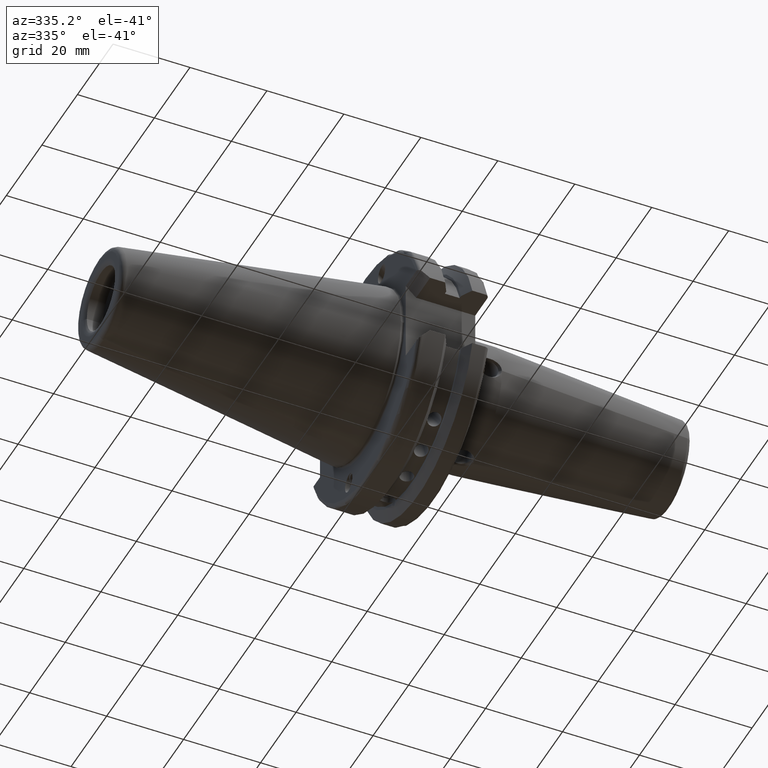
[diagram: clean part render]
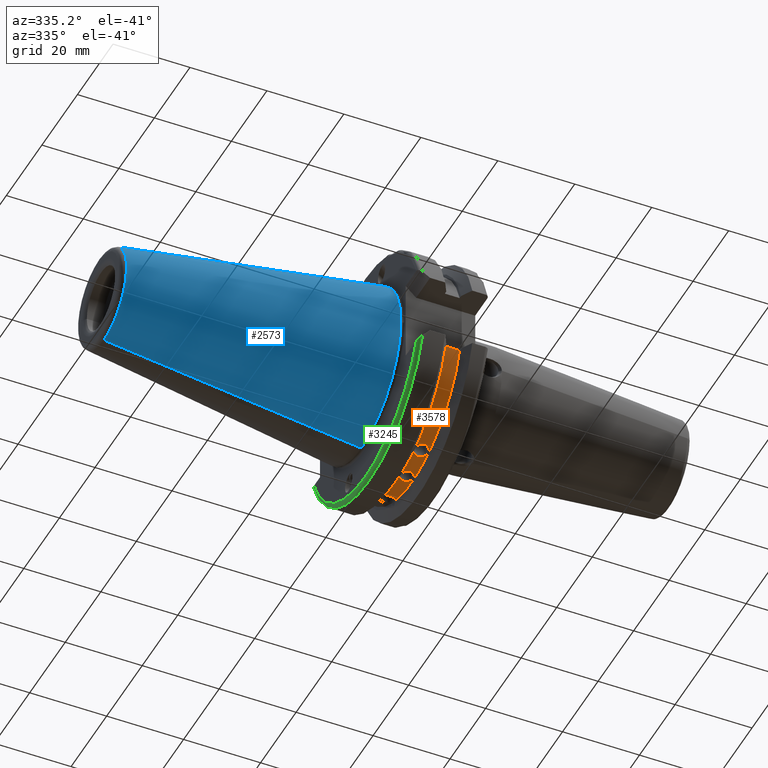
[diagram: same view with three faces highlighted in distinct colors, each labeled with its STEP entity id]
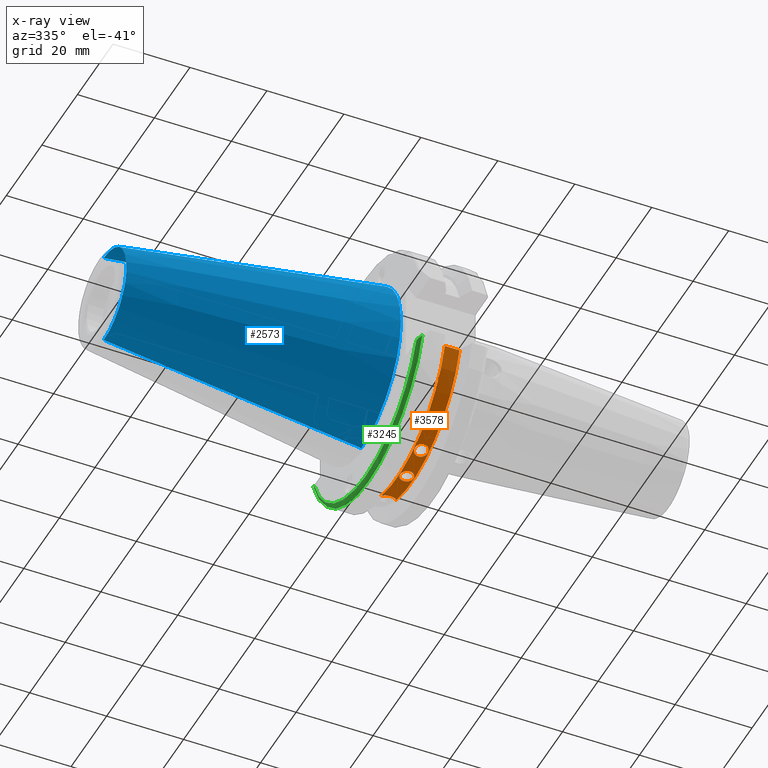
[diagram: x-ray of the same camera — body ghosted, the three highlighted faces saturated]
A machine part, auxiliary view with three faces highlighted in distinct colors.
The next image is the same camera in x-ray (body ghosted, the three faces saturated) — at least one of them is partly hidden behind the body in this view.
Their STEP definitions:

[orange] entity #3578 — the highlighted cylindrical surface (partial cylindrical patch) has radius 28.194 mm, axis along (1, 0, 0).
#932=CARTESIAN_POINT('',(3.63E-1,3.467616214502E-1,-1.054446005203E0));
#933=CARTESIAN_POINT('',(3.652420429702E-1,3.421682119876E-1,
-1.055956578628E0));
#934=CARTESIAN_POINT('',(3.707045512659E-1,3.331805302706E-1,
-1.058846919325E0));
#935=CARTESIAN_POINT('',(3.830062237096E-1,3.201251157136E-1,
-1.062861149201E0));
#936=CARTESIAN_POINT('',(3.990490784815E-1,3.094131909959E-1,
-1.066016879720E0));
#937=CARTESIAN_POINT('',(4.181273427184E-1,3.024342533407E-1,
-1.068007674065E0));
#938=CARTESIAN_POINT('',(4.312216038652E-1,3.008966716070E-1,
-1.068438670685E0));
#939=CARTESIAN_POINT('',(4.38E-1,3.008966716070E-1,-1.068438670685E0));
#941=CARTESIAN_POINT('',(3.63E-1,0.E0,0.E0));
#942=DIRECTION('',(-1.E0,0.E0,0.E0));
#943=DIRECTION('',(0.E0,3.123978571623E-1,-9.499513560390E-1));
#944=AXIS2_PLACEMENT_3D('',#941,#942,#943);
#946=DIRECTION('',(1.E0,0.E0,0.E0));
#947=VECTOR('',#946,1.51E-1);
#948=CARTESIAN_POINT('',(3.63E-1,-1.062269269065E0,-3.22E-1));
#949=LINE('',#948,#947);
#950=CARTESIAN_POINT('',(5.14E-1,0.E0,0.E0));
#951=DIRECTION('',(1.E0,0.E0,0.E0));
#952=DIRECTION('',(0.E0,-9.569993415E-1,-2.900900900901E-1));
#953=AXIS2_PLACEMENT_3D('',#950,#951,#952);
#955=CARTESIAN_POINT('',(4.38E-1,3.008966716070E-1,-1.068438670685E0));
#956=CARTESIAN_POINT('',(4.451480456105E-1,3.008966716070E-1,
-1.068438670685E0));
#957=CARTESIAN_POINT('',(4.588578755663E-1,3.026052277595E-1,
-1.067959900312E0));
#958=CARTESIAN_POINT('',(4.785243857078E-1,3.101729484678E-1,
-1.065798260325E0));
#959=CARTESIAN_POINT('',(4.947155534546E-1,3.215783670997E-1,
-1.062425069525E0));
#960=CARTESIAN_POINT('',(5.067422558969E-1,3.351260794586E-1,
-1.058234525019E0));
#961=CARTESIAN_POINT('',(5.119144113810E-1,3.442671938992E-1,
-1.055274292374E0));
#962=CARTESIAN_POINT('',(5.14E-1,3.488919359391E-1,-1.053743050766E0));
#1028=CARTESIAN_POINT('',(4.38E-1,-7.217507112754E-1,-8.433124633097E-1));
#1029=CARTESIAN_POINT('',(4.312761269445E-1,-7.217507112754E-1,
-8.433124633097E-1));
#1030=CARTESIAN_POINT('',(4.184239813639E-1,-7.203202020981E-1,
-8.445399283354E-1));
#1031=CARTESIAN_POINT('',(4.002364574980E-1,-7.140204130629E-1,
-8.498896777967E-1));
#1032=CARTESIAN_POINT('',(3.852243874663E-1,-7.039967206173E-1,
-8.582329882160E-1));
#1033=CARTESIAN_POINT('',(3.744651866073E-1,-6.909807782453E-1,
-8.687664430332E-1));
#1034=CARTESIAN_POINT('',(3.688705703435E-1,-6.759563477016E-1,
-8.805184779183E-1));
#1035=CARTESIAN_POINT('',(3.688706973387E-1,-6.600896743002E-1,
-8.924748639386E-1));
#1036=CARTESIAN_POINT('',(3.744648323556E-1,-6.446525844226E-1,
-9.036772690146E-1));
#1037=CARTESIAN_POINT('',(3.852237052808E-1,-6.309392321522E-1,
-9.132857924329E-1));
#1038=CARTESIAN_POINT('',(4.002364482848E-1,-6.201557209505E-1,
-9.206217990018E-1));
#1039=CARTESIAN_POINT('',(4.184229826247E-1,-6.132770086136E-1,
-9.252027854687E-1));
#1040=CARTESIAN_POINT('',(4.312757162272E-1,-6.117025110720E-1,
-9.262397302795E-1));
#1041=CARTESIAN_POINT('',(4.38E-1,-6.117025110720E-1,-9.262397302795E-1));
#1043=CARTESIAN_POINT('',(4.38E-1,-6.117025110720E-1,-9.262397302795E-1));
#1044=CARTESIAN_POINT('',(4.447238891192E-1,-6.117025110720E-1,
-9.262397302795E-1));
#1045=CARTESIAN_POINT('',(4.575760608785E-1,-6.132767355758E-1,
-9.252029668026E-1));
#1046=CARTESIAN_POINT('',(4.757636043935E-1,-6.201557249451E-1,
-9.206217962513E-1));
#1047=CARTESIAN_POINT('',(4.907756800087E-1,-6.309387638143E-1,
-9.132861115052E-1));
#1048=CARTESIAN_POINT('',(5.015348615339E-1,-6.446518775703E-1,
-9.036777773533E-1));
#1049=CARTESIAN_POINT('',(5.071294302905E-1,-6.600899180540E-1,
-8.924746903090E-1));
#1050=CARTESIAN_POINT('',(5.071292962779E-1,-6.759564768741E-1,
-8.805183701487E-1));
#1051=CARTESIAN_POINT('',(5.015352468767E-1,-6.909798654527E-1,
-8.687671646678E-1));
#1052=CARTESIAN_POINT('',(4.907764061888E-1,-7.039961360108E-1,
-8.582334733220E-1));
#1053=CARTESIAN_POINT('',(4.757636536170E-1,-7.140203417956E-1,
-8.498897380373E-1));
#1054=CARTESIAN_POINT('',(4.575770907833E-1,-7.203199333764E-1,
-8.445401572800E-1));
#1055=CARTESIAN_POINT('',(4.447243118832E-1,-7.217507112754E-1,
-8.433124633097E-1));
#1056=CARTESIAN_POINT('',(4.38E-1,-7.217507112754E-1,-8.433124633097E-1));
#1058=CARTESIAN_POINT('',(4.38E-1,-4.436529353006E-1,-1.017483205266E0));
#1059=CARTESIAN_POINT('',(4.312761269445E-1,-4.436529353006E-1,
-1.017483205266E0));
#1060=CARTESIAN_POINT('',(4.184239813639E-1,-4.419260565288E-1,
-1.018238795501E0));
#1061=CARTESIAN_POINT('',(4.002364574980E-1,-4.343374229431E-1,
-1.021512906295E0));
#1062=CARTESIAN_POINT('',(3.852243874663E-1,-4.223123702947E-1,
-1.026561009681E0));
#1063=CARTESIAN_POINT('',(3.744651866073E-1,-4.067854785595E-1,
-1.032828709360E0));
#1064=CARTESIAN_POINT('',(3.688705703435E-1,-3.889815817016E-1,
-1.039674517842E0));
#1065=CARTESIAN_POINT('',(3.688706973387E-1,-3.703124975034E-1,
-1.046469500307E0));
#1066=CARTESIAN_POINT('',(3.744648323556E-1,-3.522746687662E-1,
-1.052669045276E0));
#1067=CARTESIAN_POINT('',(3.852237052808E-1,-3.363512643981E-1,
-1.057848325738E0));
#1068=CARTESIAN_POINT('',(4.002364482848E-1,-3.238941006036E-1,
-1.061710990157E0));
#1069=CARTESIAN_POINT('',(4.184229826247E-1,-3.159766044583E-1,
-1.064080668450E0));
#1070=CARTESIAN_POINT('',(4.312757162272E-1,-3.141677316489E-1,
-1.064611965173E0));
#1071=CARTESIAN_POINT('',(4.38E-1,-3.141677316489E-1,-1.064611965173E0));
#1073=CARTESIAN_POINT('',(4.38E-1,-3.141677316489E-1,-1.064611965173E0));
#1074=CARTESIAN_POINT('',(4.447238891192E-1,-3.141677316489E-1,
-1.064611965173E0));
#1075=CARTESIAN_POINT('',(4.575760608785E-1,-3.159762903340E-1,
-1.064080762032E0));
#1076=CARTESIAN_POINT('',(4.757636043935E-1,-3.238941052278E-1,
-1.061710988694E0));
#1077=CARTESIAN_POINT('',(4.907756800087E-1,-3.363507232367E-1,
-1.057848493939E0));
#1078=CARTESIAN_POINT('',(5.015348615339E-1,-3.522738441762E-1,
-1.052669324739E0));
#1079=CARTESIAN_POINT('',(5.071294302905E-1,-3.703127813707E-1,
-1.046469405531E0));
#1080=CARTESIAN_POINT('',(5.071292962779E-1,-3.889817367387E-1,
-1.039674452548E0));
#1081=CARTESIAN_POINT('',(5.015352468767E-1,-4.067843946660E-1,
-1.032829132588E0));
#1082=CARTESIAN_POINT('',(4.907764061888E-1,-4.223116694015E-1,
-1.026561302668E0));
#1083=CARTESIAN_POINT('',(4.757636536170E-1,-4.343373371772E-1,
-1.021512943067E0));
#1084=CARTESIAN_POINT('',(4.575770907833E-1,-4.419257326121E-1,
-1.018238935876E0));
#1085=CARTESIAN_POINT('',(4.447243118832E-1,-4.436529353006E-1,
-1.017483205266E0));
#1086=CARTESIAN_POINT('',(4.38E-1,-4.436529353006E-1,-1.017483205266E0));
#1088=CARTESIAN_POINT('',(4.38E-1,-1.267841127744E-1,-1.102735593308E0));
#1089=CARTESIAN_POINT('',(4.312771239062E-1,-1.267841127744E-1,
-1.102735593308E0));
#1090=CARTESIAN_POINT('',(4.184261044830E-1,-1.249125171041E-1,
-1.102953192650E0));
#1091=CARTESIAN_POINT('',(4.002352482686E-1,-1.166971373456E-1,
-1.103865666434E0));
#1092=CARTESIAN_POINT('',(3.852221448413E-1,-1.037193697737E-1,
-1.105177608670E0));
#1093=CARTESIAN_POINT('',(3.744645507463E-1,-8.703916036243E-2,
-1.106631707058E0));
#1094=CARTESIAN_POINT('',(3.688706045853E-1,-6.801305987983E-2,
-1.107972916234E0));
#1095=CARTESIAN_POINT('',(3.688706853759E-1,-4.817368172781E-2,
-1.109012649216E0));
#1096=CARTESIAN_POINT('',(3.744648318416E-1,-2.911125793110E-2,
-1.109667561886E0));
#1097=CARTESIAN_POINT('',(3.852237298679E-1,-1.236938117561E-2,
-1.109964977254E0));
#1098=CARTESIAN_POINT('',(4.002364163851E-1,6.727622497784E-4,
-1.110016739759E0));
#1099=CARTESIAN_POINT('',(4.184229815171E-1,8.937152221897E-3,
-1.109968022467E0));
#1100=CARTESIAN_POINT('',(4.312757149318E-1,1.082231917999E-2,
-1.109947240822E0));
#1101=CARTESIAN_POINT('',(4.38E-1,1.082231917999E-2,-1.109947240822E0));
#1103=CARTESIAN_POINT('',(4.38E-1,1.082231917999E-2,-1.109947240822E0));
#1104=CARTESIAN_POINT('',(4.447238891192E-1,1.082231917999E-2,
-1.109947240822E0));
#1105=CARTESIAN_POINT('',(4.575760608785E-1,8.937477139823E-3,
-1.109968020116E0));
#1106=CARTESIAN_POINT('',(4.757636043935E-1,6.727784296033E-4,
-1.110016739641E0));
#1107=CARTESIAN_POINT('',(4.907756800087E-1,-1.236882879136E-2,
-1.109964980180E0));
#1108=CARTESIAN_POINT('',(5.015348615339E-1,-2.911042760376E-2,
-1.109667586055E0));
#1109=CARTESIAN_POINT('',(5.071294302905E-1,-4.817382998347E-2,
-1.109012648649E0));
#1110=CARTESIAN_POINT('',(5.071292962779E-1,-6.801369277780E-2,
-1.107972877101E0));
#1111=CARTESIAN_POINT('',(5.015352468767E-1,-8.703983708865E-2,
-1.106631658514E0));
#1112=CARTESIAN_POINT('',(4.907764061888E-1,-1.037211798838E-1,
-1.105177438736E0));
#1113=CARTESIAN_POINT('',(4.757636536170E-1,-1.166973806741E-1,
-1.103865633428E0));
#1114=CARTESIAN_POINT('',(4.575770907833E-1,-1.249114263824E-1,
-1.102953316889E0));
#1115=CARTESIAN_POINT('',(4.447243118832E-1,-1.267841127744E-1,
-1.102735593308E0));
#1116=CARTESIAN_POINT('',(4.38E-1,-1.267841127744E-1,-1.102735593308E0));
#2150=CARTESIAN_POINT('',(3.63E-1,-1.062269269065E0,-3.22E-1));
#2151=VERTEX_POINT('',#2150);
#2154=CARTESIAN_POINT('',(5.14E-1,-1.062269269065E0,-3.22E-1));
#2155=VERTEX_POINT('',#2154);
#2274=CARTESIAN_POINT('',(3.63E-1,3.467616214502E-1,-1.054446005203E0));
#2275=VERTEX_POINT('',#2274);
#2279=VERTEX_POINT('',#939);
#2280=VERTEX_POINT('',#962);
#2326=VERTEX_POINT('',#1028);
#2327=VERTEX_POINT('',#1041);
#2334=VERTEX_POINT('',#1058);
#2335=VERTEX_POINT('',#1071);
#2342=VERTEX_POINT('',#1088);
#2343=VERTEX_POINT('',#1101);
#3545=CARTESIAN_POINT('',(0.E0,0.E0,0.E0));
#3546=DIRECTION('',(1.E0,0.E0,0.E0));
#3547=DIRECTION('',(0.E0,0.E0,1.E0));
#3548=AXIS2_PLACEMENT_3D('',#3545,#3546,#3547);
#3549=CYLINDRICAL_SURFACE('',#3548,1.11E0);
#3551=ORIENTED_EDGE('',*,*,#3550,.F.);
#3553=ORIENTED_EDGE('',*,*,#3552,.T.);
#3554=ORIENTED_EDGE('',*,*,#3456,.T.);
#3556=ORIENTED_EDGE('',*,*,#3555,.T.);
#3557=ORIENTED_EDGE('',*,*,#3510,.F.);
#3558=EDGE_LOOP('',(#3551,#3553,#3554,#3556,#3557));
#3559=FACE_OUTER_BOUND('',#3558,.F.);
#3561=ORIENTED_EDGE('',*,*,#3560,.T.);
#3563=ORIENTED_EDGE('',*,*,#3562,.T.);
#3564=EDGE_LOOP('',(#3561,#3563));
#3565=FACE_BOUND('',#3564,.F.);
#3567=ORIENTED_EDGE('',*,*,#3566,.T.);
#3569=ORIENTED_EDGE('',*,*,#3568,.T.);
#3570=EDGE_LOOP('',(#3567,#3569));
#3571=FACE_BOUND('',#3570,.F.);
#3573=ORIENTED_EDGE('',*,*,#3572,.T.);
#3575=ORIENTED_EDGE('',*,*,#3574,.T.);
#3576=EDGE_LOOP('',(#3573,#3575));
#3577=FACE_BOUND('',#3576,.F.);
#3578=ADVANCED_FACE('',(#3559,#3565,#3571,#3577),#3549,.T.);
#940=B_SPLINE_CURVE_WITH_KNOTS('',3,(#932,#933,#934,#935,#936,#937,#938,#939),
.UNSPECIFIED.,.F.,.F.,(4,1,1,1,1,4),(0.E0,2.E-1,4.E-1,6.E-1,8.E-1,1.E0),
.UNSPECIFIED.);
#945=CIRCLE('',#944,1.11E0);
#954=CIRCLE('',#953,1.11E0);
#963=B_SPLINE_CURVE_WITH_KNOTS('',3,(#955,#956,#957,#958,#959,#960,#961,#962),
.UNSPECIFIED.,.F.,.F.,(4,1,1,1,1,4),(0.E0,2.E-1,4.E-1,6.E-1,8.E-1,1.E0),
.UNSPECIFIED.);
#1042=B_SPLINE_CURVE_WITH_KNOTS('',3,(#1028,#1029,#1030,#1031,#1032,#1033,#1034,
#1035,#1036,#1037,#1038,#1039,#1040,#1041),.UNSPECIFIED.,.F.,.F.,(4,1,1,1,1,1,1,
1,1,1,1,4),(0.E0,9.090909090909E-2,1.818181818182E-1,2.727272727273E-1,
3.636363636364E-1,4.545454545455E-1,5.454545454545E-1,6.363636363636E-1,
7.272727272727E-1,8.181818181818E-1,9.090909090909E-1,1.E0),.UNSPECIFIED.);
#1057=B_SPLINE_CURVE_WITH_KNOTS('',3,(#1043,#1044,#1045,#1046,#1047,#1048,#1049,
#1050,#1051,#1052,#1053,#1054,#1055,#1056),.UNSPECIFIED.,.F.,.F.,(4,1,1,1,1,1,1,
1,1,1,1,4),(0.E0,9.090909090909E-2,1.818181818182E-1,2.727272727273E-1,
3.636363636364E-1,4.545454545455E-1,5.454545454545E-1,6.363636363636E-1,
7.272727272727E-1,8.181818181818E-1,9.090909090909E-1,1.E0),.UNSPECIFIED.);
#1072=B_SPLINE_CURVE_WITH_KNOTS('',3,(#1058,#1059,#1060,#1061,#1062,#1063,#1064,
#1065,#1066,#1067,#1068,#1069,#1070,#1071),.UNSPECIFIED.,.F.,.F.,(4,1,1,1,1,1,1,
1,1,1,1,4),(0.E0,9.090909090909E-2,1.818181818182E-1,2.727272727273E-1,
3.636363636364E-1,4.545454545455E-1,5.454545454545E-1,6.363636363636E-1,
7.272727272727E-1,8.181818181818E-1,9.090909090909E-1,1.E0),.UNSPECIFIED.);
#1087=B_SPLINE_CURVE_WITH_KNOTS('',3,(#1073,#1074,#1075,#1076,#1077,#1078,#1079,
#1080,#1081,#1082,#1083,#1084,#1085,#1086),.UNSPECIFIED.,.F.,.F.,(4,1,1,1,1,1,1,
1,1,1,1,4),(0.E0,9.090909090909E-2,1.818181818182E-1,2.727272727273E-1,
3.636363636364E-1,4.545454545455E-1,5.454545454545E-1,6.363636363636E-1,
7.272727272727E-1,8.181818181818E-1,9.090909090909E-1,1.E0),.UNSPECIFIED.);
#1102=B_SPLINE_CURVE_WITH_KNOTS('',3,(#1088,#1089,#1090,#1091,#1092,#1093,#1094,
#1095,#1096,#1097,#1098,#1099,#1100,#1101),.UNSPECIFIED.,.F.,.F.,(4,1,1,1,1,1,1,
1,1,1,1,4),(0.E0,9.090909090909E-2,1.818181818182E-1,2.727272727273E-1,
3.636363636364E-1,4.545454545455E-1,5.454545454545E-1,6.363636363636E-1,
7.272727272727E-1,8.181818181818E-1,9.090909090909E-1,1.E0),.UNSPECIFIED.);
#1117=B_SPLINE_CURVE_WITH_KNOTS('',3,(#1103,#1104,#1105,#1106,#1107,#1108,#1109,
#1110,#1111,#1112,#1113,#1114,#1115,#1116),.UNSPECIFIED.,.F.,.F.,(4,1,1,1,1,1,1,
1,1,1,1,4),(0.E0,9.090909090909E-2,1.818181818182E-1,2.727272727273E-1,
3.636363636364E-1,4.545454545455E-1,5.454545454545E-1,6.363636363636E-1,
7.272727272727E-1,8.181818181818E-1,9.090909090909E-1,1.E0),.UNSPECIFIED.);
#3456=EDGE_CURVE('',#2151,#2155,#949,.T.);
#3510=EDGE_CURVE('',#2279,#2280,#963,.T.);
#3550=EDGE_CURVE('',#2275,#2279,#940,.T.);
#3552=EDGE_CURVE('',#2275,#2151,#945,.T.);
#3555=EDGE_CURVE('',#2155,#2280,#954,.T.);
#3560=EDGE_CURVE('',#2326,#2327,#1042,.T.);
#3562=EDGE_CURVE('',#2327,#2326,#1057,.T.);
#3566=EDGE_CURVE('',#2334,#2335,#1072,.T.);
#3568=EDGE_CURVE('',#2335,#2334,#1087,.T.);
#3572=EDGE_CURVE('',#2342,#2343,#1102,.T.);
#3574=EDGE_CURVE('',#2343,#2342,#1117,.T.);

[blue] entity #2573 — the highlighted conical surface has half-angle 8 deg.
#21=CARTESIAN_POINT('',(-4.305504153268E-5,0.E0,-8.749254264805E-1));
#63=CARTESIAN_POINT('',(-4.305504153157E-5,0.E0,8.749254264805E-1));
#64=CARTESIAN_POINT('',(-4.305504153155E-5,-4.584331184078E-2,
8.749254264805E-1));
#65=CARTESIAN_POINT('',(-5.883786732571E-4,-1.374951999106E-1,
8.677286011283E-1));
#66=CARTESIAN_POINT('',(-3.691783686581E-4,-2.715088353159E-1,
8.355349840995E-1));
#67=CARTESIAN_POINT('',(-4.279941394658E-4,-3.988257234252E-1,
7.828042215269E-1));
#68=CARTESIAN_POINT('',(-4.119313608395E-4,-5.163890294062E-1,
7.107661974573E-1));
#69=CARTESIAN_POINT('',(-4.173667045423E-4,-6.212177898377E-1,
6.212354194460E-1));
#70=CARTESIAN_POINT('',(-4.116881083627E-4,-7.107531036524E-1,
5.164045213934E-1));
#71=CARTESIAN_POINT('',(-4.289671493835E-4,-7.827927589650E-1,
3.988582567174E-1));
#72=CARTESIAN_POINT('',(-3.655295814907E-4,-8.355288919468E-1,
2.714908526855E-1));
#73=CARTESIAN_POINT('',(-6.020008120517E-4,-8.677965218904E-1,
1.374358406493E-1));
#74=CARTESIAN_POINT('',(-1.370257582463E-5,-8.747992114936E-1,
4.581575633870E-2));
#75=CARTESIAN_POINT('',(-1.370347566954E-5,-8.747992113672E-1,
-6.795638889010E-10));
#77=CARTESIAN_POINT('',(-1.370347566954E-5,-8.747992113672E-1,
-6.795638889010E-10));
#78=CARTESIAN_POINT('',(-1.370272464083E-5,-8.747992114727E-1,
-4.581591668632E-2));
#79=CARTESIAN_POINT('',(-6.020007429866E-4,-8.677964639419E-1,
-1.374363263782E-1));
#80=CARTESIAN_POINT('',(-3.655295999996E-4,-8.355286465885E-1,
-2.714917419414E-1));
#81=CARTESIAN_POINT('',(-4.289671444291E-4,-7.827920254419E-1,
-3.988596702962E-1));
#82=CARTESIAN_POINT('',(-4.116881096979E-4,-7.107522962076E-1,
-5.164058023745E-1));
#83=CARTESIAN_POINT('',(-4.173667041933E-4,-6.212151611091E-1,
-6.212379548718E-1));
#84=CARTESIAN_POINT('',(-4.119313609428E-4,-5.163888760576E-1,
-7.107662501390E-1));
#85=CARTESIAN_POINT('',(-4.279941394493E-4,-3.988200299960E-1,
-7.828079672036E-1));
#86=CARTESIAN_POINT('',(-3.691783686740E-4,-2.714942615276E-1,
-8.355390552492E-1));
#87=CARTESIAN_POINT('',(-5.883786732688E-4,-1.375045947263E-1,
-8.677263106277E-1));
#88=CARTESIAN_POINT('',(-4.305504153269E-5,-4.584770808659E-2,
-8.749254264805E-1));
#89=CARTESIAN_POINT('',(-4.305504153268E-5,0.E0,-8.749254264805E-1));
#91=DIRECTION('',(-9.902716159221E-1,9.343929984969E-12,1.391478591249E-1));
#92=VECTOR('',#91,2.662065756031E0);
#93=CARTESIAN_POINT('',(-4.305504153268E-5,0.E0,-8.749254264805E-1));
#94=LINE('',#93,#92);
#95=CARTESIAN_POINT('',(-2.636211212957E0,0.E0,0.E0));
#96=DIRECTION('',(-1.E0,0.E0,0.E0));
#97=DIRECTION('',(0.E0,0.E0,-1.E0));
#98=AXIS2_PLACEMENT_3D('',#95,#96,#97);
#100=DIRECTION('',(-9.902716159221E-1,-9.343934677451E-12,-1.391478591249E-1));
#101=VECTOR('',#100,2.662065756031E0);
#102=CARTESIAN_POINT('',(-4.305504153157E-5,0.E0,8.749254264805E-1));
#103=LINE('',#102,#101);
#2190=CARTESIAN_POINT('',(-2.636211212957E0,0.E0,-5.045046756793E-1));
#2191=CARTESIAN_POINT('',(-2.636211212957E0,0.E0,5.045046756793E-1));
#2192=VERTEX_POINT('',#2190);
#2193=VERTEX_POINT('',#2191);
#2194=VERTEX_POINT('',#63);
#2195=VERTEX_POINT('',#75);
#2197=VERTEX_POINT('',#21);
#2560=CARTESIAN_POINT('',(-1.318105606478E0,0.E0,0.E0));
#2561=DIRECTION('',(1.E0,0.E0,0.E0));
#2562=DIRECTION('',(0.E0,0.E0,1.E0));
#2563=AXIS2_PLACEMENT_3D('',#2560,#2561,#2562);
#2564=CONICAL_SURFACE('',#2563,6.897523378396E-1,8.E0);
#2565=ORIENTED_EDGE('',*,*,#2509,.T.);
#2566=ORIENTED_EDGE('',*,*,#2554,.T.);
#2567=ORIENTED_EDGE('',*,*,#2493,.T.);
#2569=ORIENTED_EDGE('',*,*,#2568,.T.);
#2570=ORIENTED_EDGE('',*,*,#2489,.F.);
#2571=EDGE_LOOP('',(#2565,#2566,#2567,#2569,#2570));
#2572=FACE_OUTER_BOUND('',#2571,.F.);
#2573=ADVANCED_FACE('',(#2572),#2564,.T.);
#76=B_SPLINE_CURVE_WITH_KNOTS('',3,(#63,#64,#65,#66,#67,#68,#69,#70,#71,#72,#73,
#74,#75),.UNSPECIFIED.,.F.,.F.,(4,1,1,1,1,1,1,1,1,1,4),(0.E0,1.E-1,2.E-1,3.E-1,
4.E-1,5.E-1,6.E-1,7.E-1,8.E-1,9.E-1,1.E0),.UNSPECIFIED.);
#90=B_SPLINE_CURVE_WITH_KNOTS('',3,(#77,#78,#79,#80,#81,#82,#83,#84,#85,#86,#87,
#88,#89),.UNSPECIFIED.,.F.,.F.,(4,1,1,1,1,1,1,1,1,1,4),(0.E0,1.E-1,2.E-1,3.E-1,
4.E-1,5.E-1,6.E-1,7.E-1,8.E-1,9.E-1,1.E0),.UNSPECIFIED.);
#99=CIRCLE('',#98,5.045046756793E-1);
#2489=EDGE_CURVE('',#2194,#2193,#103,.T.);
#2493=EDGE_CURVE('',#2197,#2192,#94,.T.);
#2509=EDGE_CURVE('',#2194,#2195,#76,.T.);
#2554=EDGE_CURVE('',#2195,#2197,#90,.T.);
#2568=EDGE_CURVE('',#2192,#2193,#99,.T.);

[green] entity #3245 — the highlighted toroidal blend (fillet) surface has major radius 30.7594 mm and minor (blend) radius 0.9906 mm.
#590=CARTESIAN_POINT('',(7.8E-2,0.E0,0.E0));
#591=DIRECTION('',(1.E0,0.E0,0.E0));
#592=DIRECTION('',(0.E0,-9.503444428206E-1,-3.112E-1));
#593=AXIS2_PLACEMENT_3D('',#590,#591,#592);
#595=CARTESIAN_POINT('',(3.9E-2,0.E0,0.E0));
#596=DIRECTION('',(-1.E0,0.E0,0.E0));
#597=DIRECTION('',(0.E0,9.354621383516E-1,-3.534269199009E-1));
#598=AXIS2_PLACEMENT_3D('',#595,#596,#597);
#600=CARTESIAN_POINT('',(7.8E-2,1.187930553526E0,-3.89E-1));
#601=CARTESIAN_POINT('',(7.379035633106E-2,1.186552062685E0,
-3.932096436689E-1));
#602=CARTESIAN_POINT('',(6.609802832319E-2,1.182607315336E0,
-4.009019716768E-1));
#603=CARTESIAN_POINT('',(5.633878386576E-2,1.174258139515E0,
-4.106612161342E-1));
#604=CARTESIAN_POINT('',(4.878256700706E-2,1.164633038698E0,
-4.182174329929E-1));
#605=CARTESIAN_POINT('',(4.318905801078E-2,1.154124716702E0,
-4.238109419892E-1));
#606=CARTESIAN_POINT('',(3.973194904107E-2,1.143074299519E0,
-4.272680509589E-1));
#607=CARTESIAN_POINT('',(3.9E-2,1.136217904497E0,-4.28E-1));
#608=CARTESIAN_POINT('',(3.9E-2,1.132844649544E0,-4.28E-1));
#1818=CARTESIAN_POINT('',(3.9E-2,-1.132844649544E0,-4.28E-1));
#1819=CARTESIAN_POINT('',(3.9E-2,-1.136215464061E0,-4.28E-1));
#1820=CARTESIAN_POINT('',(3.973101709513E-2,-1.143067533071E0,
-4.272689829049E-1));
#1821=CARTESIAN_POINT('',(4.318359043412E-2,-1.154110840104E0,
-4.238164095659E-1));
#1822=CARTESIAN_POINT('',(4.877296050575E-2,-1.164618299454E0,
-4.182270394943E-1));
#1823=CARTESIAN_POINT('',(5.632801700998E-2,-1.174247293719E0,
-4.106719829900E-1));
#1824=CARTESIAN_POINT('',(6.609071677453E-2,-1.182603048093E0,
-4.009092832255E-1));
#1825=CARTESIAN_POINT('',(7.378743685213E-2,-1.186551106672E0,
-3.932125631479E-1));
#1826=CARTESIAN_POINT('',(7.8E-2,-1.187930553526E0,-3.89E-1));
#2162=CARTESIAN_POINT('',(7.8E-2,-1.187930553526E0,-3.89E-1));
#2163=CARTESIAN_POINT('',(7.8E-2,1.187930553526E0,-3.89E-1));
#2164=VERTEX_POINT('',#2162);
#2165=VERTEX_POINT('',#2163);
#2166=CARTESIAN_POINT('',(3.9E-2,1.132844649544E0,-4.28E-1));
#2167=CARTESIAN_POINT('',(3.9E-2,-1.132844649544E0,-4.28E-1));
#2168=VERTEX_POINT('',#2166);
#2169=VERTEX_POINT('',#2167);
#3231=CARTESIAN_POINT('',(7.8E-2,0.E0,0.E0));
#3232=DIRECTION('',(1.E0,0.E0,0.E0));
#3233=DIRECTION('',(0.E0,9.999995644445E-1,9.333331978274E-4));
#3234=AXIS2_PLACEMENT_3D('',#3231,#3232,#3233);
#3235=TOROIDAL_SURFACE('',#3234,1.211E0,3.9E-2);
#3236=ORIENTED_EDGE('',*,*,#3165,.T.);
#3238=ORIENTED_EDGE('',*,*,#3237,.T.);
#3240=ORIENTED_EDGE('',*,*,#3239,.T.);
#3242=ORIENTED_EDGE('',*,*,#3241,.T.);
#3243=EDGE_LOOP('',(#3236,#3238,#3240,#3242));
#3244=FACE_OUTER_BOUND('',#3243,.F.);
#3245=ADVANCED_FACE('',(#3244),#3235,.T.);
#594=CIRCLE('',#593,1.25E0);
#599=CIRCLE('',#598,1.211E0);
#609=B_SPLINE_CURVE_WITH_KNOTS('',3,(#600,#601,#602,#603,#604,#605,#606,#607,
#608),.UNSPECIFIED.,.F.,.F.,(4,1,1,1,1,1,4),(0.E0,1.666666666667E-1,
3.333333333333E-1,5.E-1,6.666666666667E-1,8.333333333333E-1,1.E0),
.UNSPECIFIED.);
#1827=B_SPLINE_CURVE_WITH_KNOTS('',3,(#1818,#1819,#1820,#1821,#1822,#1823,#1824,
#1825,#1826),.UNSPECIFIED.,.F.,.F.,(4,1,1,1,1,1,4),(0.E0,1.666666666667E-1,
3.333333333333E-1,5.E-1,6.666666666667E-1,8.333333333333E-1,1.E0),
.UNSPECIFIED.);
#3165=EDGE_CURVE('',#2164,#2165,#594,.T.);
#3237=EDGE_CURVE('',#2165,#2168,#609,.T.);
#3239=EDGE_CURVE('',#2168,#2169,#599,.T.);
#3241=EDGE_CURVE('',#2169,#2164,#1827,.T.);